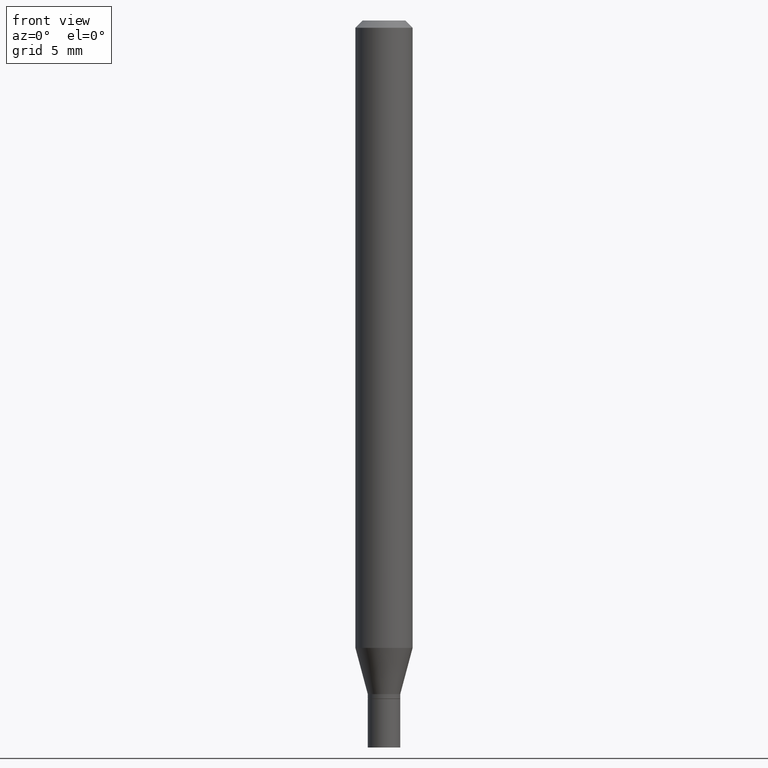
[diagram: clean part render]
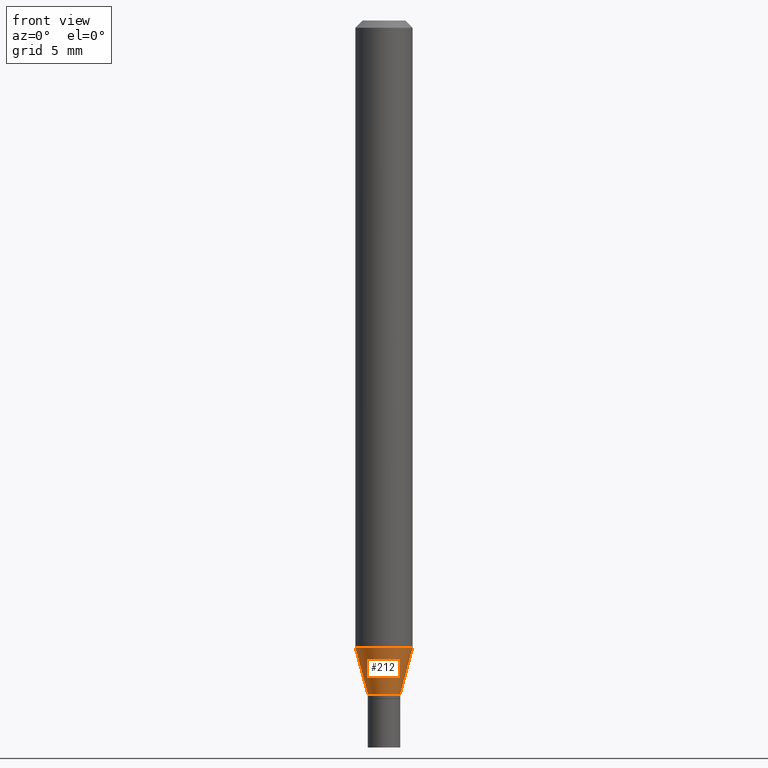
[diagram: same view with one face highlighted and labeled with its STEP entity id]
A machine part, front view. The second image highlights one B-rep face of the part: STEP entity #212.
In plain terms, the highlighted conical surface has half-angle 15 deg.
Its self-contained STEP definition (entity closure, byte-faithful):
#2 = FACE_OUTER_BOUND ( 'NONE', #123, .T. ) ;
#27 = DIRECTION ( 'NONE',  ( 0.2588190451025211836, 1.565188264969622559E-15, 0.9659258262890679791 ) ) ;
#34 = AXIS2_PLACEMENT_3D ( 'NONE', #182, #396, #104 ) ;
#38 = CARTESIAN_POINT ( 'NONE',  ( -0.03344999999999965362, -4.615482515880222190E-15, -1.390000000000000124 ) ) ;
#45 = EDGE_CURVE ( 'NONE', #303, #284, #358, .T. ) ;
#66 = ORIENTED_EDGE ( 'NONE', *, *, #248, .F. ) ;
#94 = CARTESIAN_POINT ( 'NONE',  ( -0.03344999999999965362, -4.357744108099838923E-15, -1.390000000000000124 ) ) ;
#104 = DIRECTION ( 'NONE',  ( 1.000000000000000000, -6.982962677686265133E-15, 0.000000000000000000 ) ) ;
#113 = VERTEX_POINT ( 'NONE', #423 ) ;
#116 = VERTEX_POINT ( 'NONE', #94 ) ;
#123 = EDGE_LOOP ( 'NONE', ( #66, #272, #277, #150 ) ) ;
#139 = EDGE_CURVE ( 'NONE', #116, #303, #309, .T. ) ;
#145 = LINE ( 'NONE', #38, #432 ) ;
#150 = ORIENTED_EDGE ( 'NONE', *, *, #347, .F. ) ;
#162 = DIRECTION ( 'NONE',  ( -2.445468806185136597E-29, 3.491481338843145583E-15, 1.000000000000000000 ) ) ;
#182 = CARTESIAN_POINT ( 'NONE',  ( 3.399201640597340139E-29, -4.853159060991973192E-15, -1.390000000000000124 ) ) ;
#210 = DIRECTION ( 'NONE',  ( 1.000000000000000000, -6.982962677686265133E-15, 0.000000000000000000 ) ) ;
#212 = ADVANCED_FACE ( 'NONE', ( #2 ), #266, .T. ) ;
#219 = DIRECTION ( 'NONE',  ( -0.2588190451025211836, 5.211531920934547886E-15, 0.9659258262890679791 ) ) ;
#248 = EDGE_CURVE ( 'NONE', #116, #113, #145, .T. ) ;
#266 = CONICAL_SURFACE ( 'NONE', #34, 0.03344999999999965362, 0.2617993877991499074 ) ;
#268 = DIRECTION ( 'NONE',  ( 1.000000000000000000, -6.982962677686273021E-15, 0.000000000000000000 ) ) ;
#272 = ORIENTED_EDGE ( 'NONE', *, *, #139, .T. ) ;
#277 = ORIENTED_EDGE ( 'NONE', *, *, #45, .T. ) ;
#284 = VERTEX_POINT ( 'NONE', #433 ) ;
#287 = CIRCLE ( 'NONE', #369, 0.05904999999999999832 ) ;
#303 = VERTEX_POINT ( 'NONE', #429 ) ;
#309 = CIRCLE ( 'NONE', #406, 0.03344999999999965362 ) ;
#347 = EDGE_CURVE ( 'NONE', #113, #284, #287, .T. ) ;
#353 = CARTESIAN_POINT ( 'NONE',  ( 3.399201640597340139E-29, -4.853159060991973192E-15, -1.390000000000000124 ) ) ;
#358 = LINE ( 'NONE', #385, #388 ) ;
#369 = AXIS2_PLACEMENT_3D ( 'NONE', #400, #373, #268 ) ;
#373 = DIRECTION ( 'NONE',  ( -2.445468806185136597E-29, 3.491481338843145583E-15, 1.000000000000000000 ) ) ;
#385 = CARTESIAN_POINT ( 'NONE',  ( 0.03344999999999965362, -5.086739162560575892E-15, -1.390000000000000124 ) ) ;
#388 = VECTOR ( 'NONE', #27, 39.37007874015748854 ) ;
#396 = DIRECTION ( 'NONE',  ( -2.445468806185136597E-29, 3.491481338843145583E-15, 1.000000000000000000 ) ) ;
#400 = CARTESIAN_POINT ( 'NONE',  ( 3.165560326472339188E-29, -4.519581185785793570E-15, -1.294459499326235941 ) ) ;
#406 = AXIS2_PLACEMENT_3D ( 'NONE', #353, #162, #210 ) ;
#423 = CARTESIAN_POINT ( 'NONE',  ( -0.05904999999999999832, -4.100005700319454866E-15, -1.294459499326235941 ) ) ;
#429 = CARTESIAN_POINT ( 'NONE',  ( 0.03344999999999965362, -5.086739162560575892E-15, -1.390000000000000124 ) ) ;
#432 = VECTOR ( 'NONE', #219, 39.37007874015748854 ) ;
#433 = CARTESIAN_POINT ( 'NONE',  ( 0.05904999999999999832, -4.931925131903167702E-15, -1.294459499326235941 ) ) ;